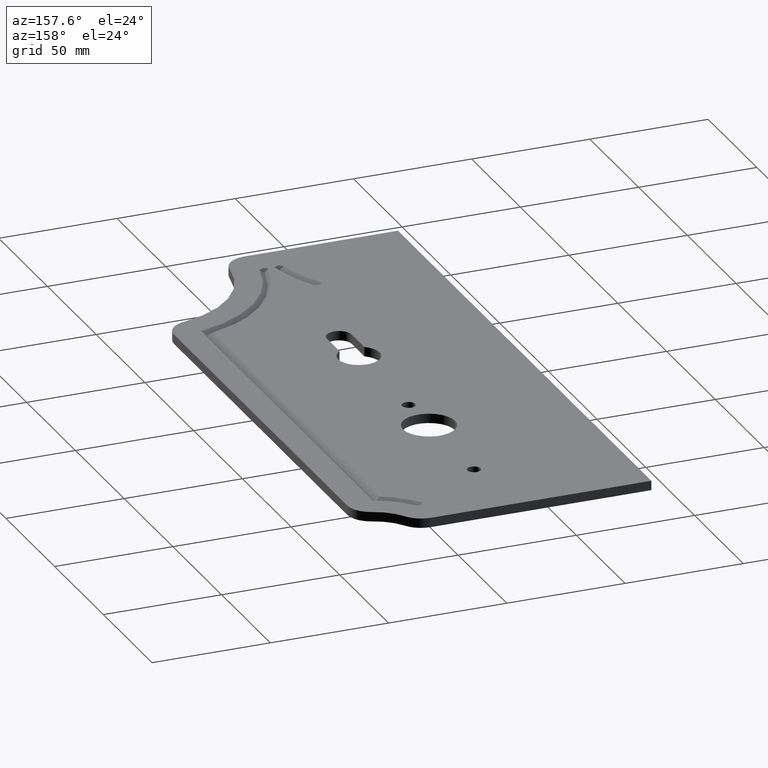
[diagram: clean part render]
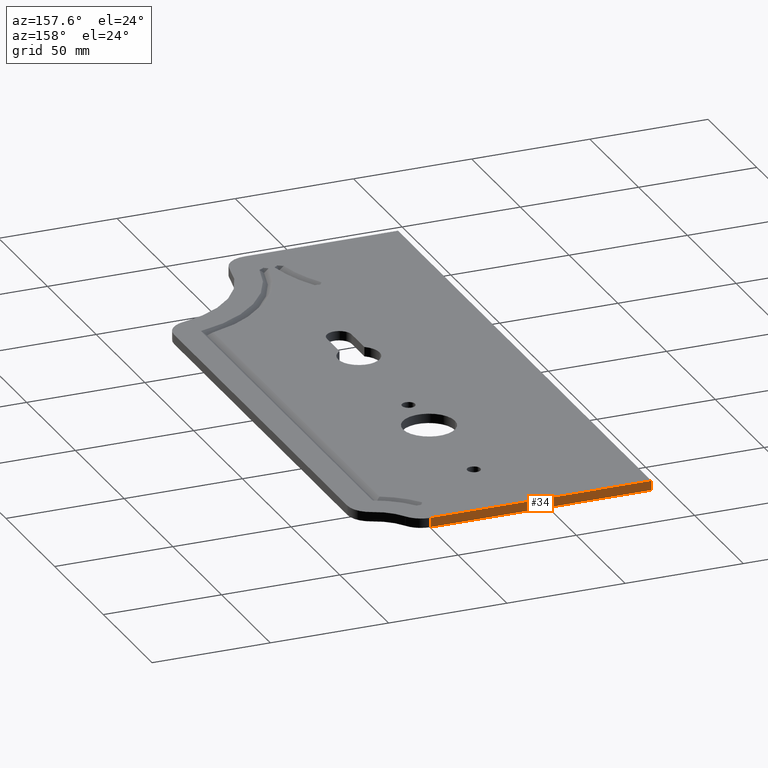
[diagram: same view with one face highlighted and labeled with its STEP entity id]
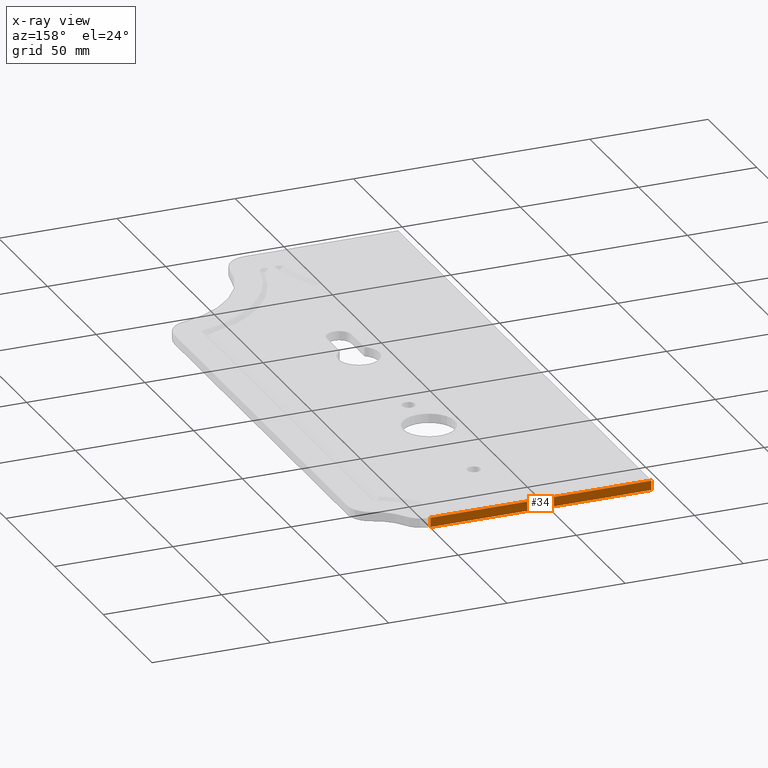
[diagram: x-ray of the same camera — body ghosted, the highlighted face saturated]
A machine part, auxiliary view. The second image highlights one B-rep face of the part: STEP entity #34.
The next image is the same camera in x-ray: the body ghosted, the highlighted face saturated — about 0% of this face is hidden behind the body in this view.
In plain terms, the highlighted planar face has unit normal (0, -1, 0).
Its self-contained STEP definition (entity closure, byte-faithful):
#34 = ADVANCED_FACE ( 'NONE', ( #1793 ), #7594, .F. ) ;
#49 = CARTESIAN_POINT ( 'NONE',  ( 60.00000000000001421, 130.0000000000000000, 4.000000000000000000 ) ) ;
#520 = EDGE_CURVE ( 'NONE', #2341, #2001, #7228, .T. ) ;
#592 = DIRECTION ( 'NONE',  ( -1.000000000000000000, -2.775557561562891844E-16, -0.000000000000000000 ) ) ;
#598 = CARTESIAN_POINT ( 'NONE',  ( 60.00000000000001421, 130.0000000000000284, 4.000000000000000000 ) ) ;
#1095 = LINE ( 'NONE', #1168, #3800 ) ;
#1168 = CARTESIAN_POINT ( 'NONE',  ( -39.99999999999999289, 130.0000000000000000, 0.000000000000000000 ) ) ;
#1184 = CARTESIAN_POINT ( 'NONE',  ( 60.00000000000001421, 130.0000000000001137, 0.000000000000000000 ) ) ;
#1199 = DIRECTION ( 'NONE',  ( 0.000000000000000000, 0.000000000000000000, 1.000000000000000000 ) ) ;
#1239 = EDGE_LOOP ( 'NONE', ( #2554, #3945, #6646, #4571 ) ) ;
#1242 = VECTOR ( 'NONE', #2686, 1000.000000000000000 ) ;
#1347 = VECTOR ( 'NONE', #4902, 1000.000000000000000 ) ;
#1515 = AXIS2_PLACEMENT_3D ( 'NONE', #2166, #3917, #4552 ) ;
#1552 = CARTESIAN_POINT ( 'NONE',  ( 153.3581572329088090, 130.0000000000000000, 4.000000000000000000 ) ) ;
#1704 = EDGE_CURVE ( 'NONE', #5931, #6145, #1095, .T. ) ;
#1793 = FACE_OUTER_BOUND ( 'NONE', #1239, .T. ) ;
#2001 = VERTEX_POINT ( 'NONE', #49 ) ;
#2166 = CARTESIAN_POINT ( 'NONE',  ( -39.99999999999999289, 130.0000000000000000, 4.000000000000000000 ) ) ;
#2341 = VERTEX_POINT ( 'NONE', #1552 ) ;
#2554 = ORIENTED_EDGE ( 'NONE', *, *, #1704, .T. ) ;
#2568 = CARTESIAN_POINT ( 'NONE',  ( 153.3581572329088090, 130.0000000000000000, 4.000000000000000000 ) ) ;
#2686 = DIRECTION ( 'NONE',  ( -1.000000000000000000, -2.775557561562891844E-16, -0.000000000000000000 ) ) ;
#3214 = CARTESIAN_POINT ( 'NONE',  ( -39.99999999999999289, 130.0000000000000000, 4.000000000000000000 ) ) ;
#3325 = LINE ( 'NONE', #598, #6317 ) ;
#3715 = EDGE_CURVE ( 'NONE', #6145, #2001, #3325, .T. ) ;
#3800 = VECTOR ( 'NONE', #592, 1000.000000000000000 ) ;
#3917 = DIRECTION ( 'NONE',  ( 2.775557561562891844E-16, -1.000000000000000000, 0.000000000000000000 ) ) ;
#3945 = ORIENTED_EDGE ( 'NONE', *, *, #3715, .T. ) ;
#4381 = CARTESIAN_POINT ( 'NONE',  ( 153.3581572329088090, 130.0000000000000000, 0.000000000000000000 ) ) ;
#4552 = DIRECTION ( 'NONE',  ( 1.000000000000000000, 2.775557561562891844E-16, 0.000000000000000000 ) ) ;
#4571 = ORIENTED_EDGE ( 'NONE', *, *, #5831, .F. ) ;
#4902 = DIRECTION ( 'NONE',  ( 0.000000000000000000, -0.000000000000000000, 1.000000000000000000 ) ) ;
#5831 = EDGE_CURVE ( 'NONE', #5931, #2341, #6469, .T. ) ;
#5931 = VERTEX_POINT ( 'NONE', #4381 ) ;
#6145 = VERTEX_POINT ( 'NONE', #1184 ) ;
#6317 = VECTOR ( 'NONE', #1199, 1000.000000000000000 ) ;
#6469 = LINE ( 'NONE', #2568, #1347 ) ;
#6646 = ORIENTED_EDGE ( 'NONE', *, *, #520, .F. ) ;
#7228 = LINE ( 'NONE', #3214, #1242 ) ;
#7594 = PLANE ( 'NONE',  #1515 ) ;